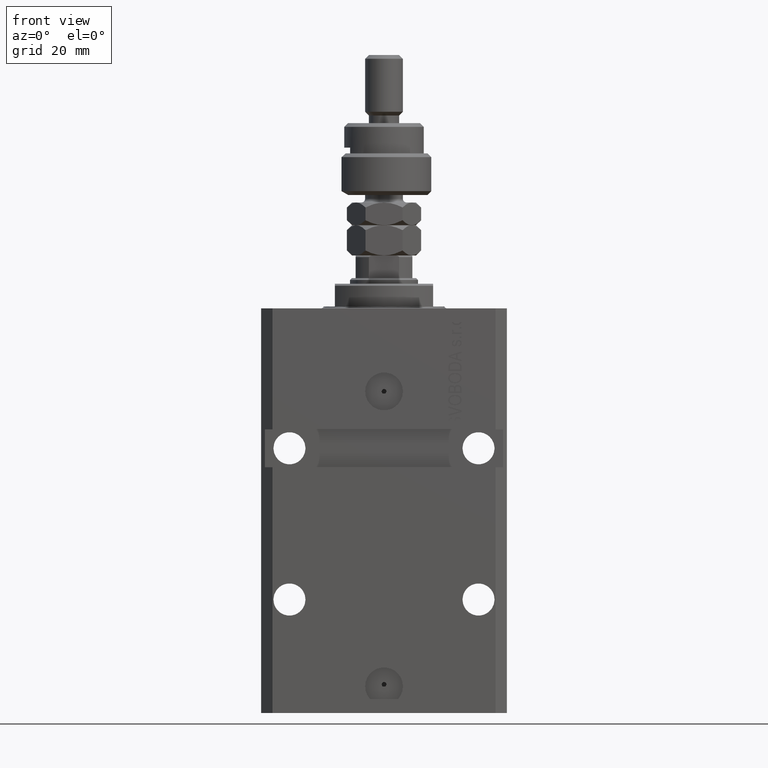
[diagram: clean part render]
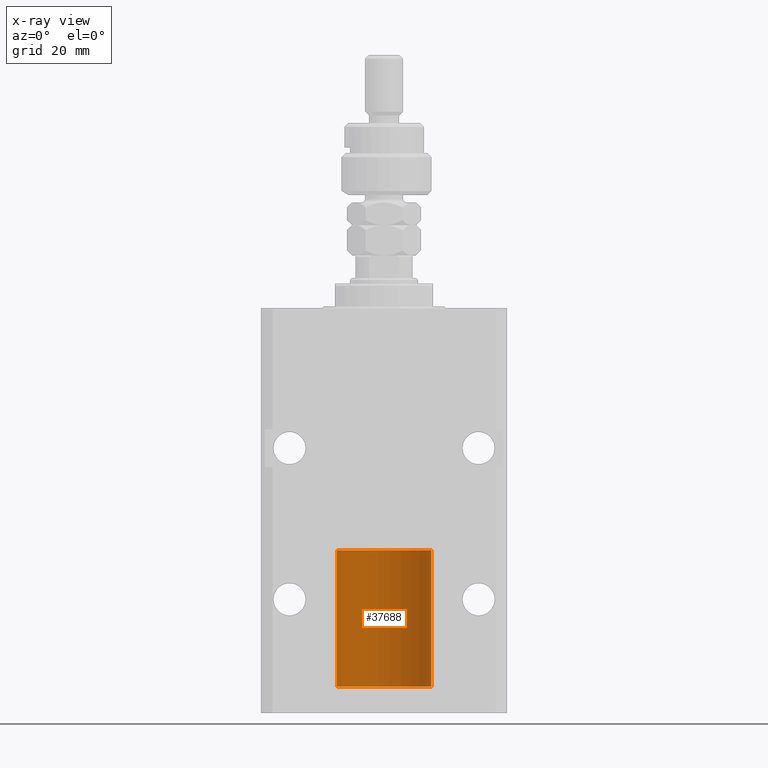
[diagram: x-ray — body ghosted, one internal face saturated and labeled with its STEP entity id]
A machine part, front view, then the same camera in x-ray: the body is ghosted and one INTERNAL B-rep face — a face not visible from any outside direction — is saturated and labeled: STEP entity #37688.
In plain terms, the highlighted cylindrical surface (partial cylindrical patch) has radius 12.5 mm, axis along (-0, -0, -1).
Its self-contained STEP definition (entity closure, byte-faithful):
#681 = EDGE_CURVE ( 'NONE', #46267, #39930, #21900, .T. ) ;
#4356 = CARTESIAN_POINT ( 'NONE',  ( 0.000000000000000000, 0.000000000000000000, 0.000000000000000000 ) ) ;
#6292 = EDGE_CURVE ( 'NONE', #46267, #42023, #17443, .T. ) ;
#6811 = ORIENTED_EDGE ( 'NONE', *, *, #8918, .T. ) ;
#8918 = EDGE_CURVE ( 'NONE', #42023, #48148, #13800, .T. ) ;
#11390 = DIRECTION ( 'NONE',  ( 0.000000000000000000, 0.000000000000000000, 1.000000000000000000 ) ) ;
#11607 = CARTESIAN_POINT ( 'NONE',  ( -12.50000000000000000, 0.000000000000000000, 0.000000000000000000 ) ) ;
#11964 = DIRECTION ( 'NONE',  ( -0.000000000000000000, -0.000000000000000000, -1.000000000000000000 ) ) ;
#13800 = CIRCLE ( 'NONE', #24525, 12.50000000000000000 ) ;
#16466 = DIRECTION ( 'NONE',  ( 0.000000000000000000, 0.000000000000000000, 1.000000000000000000 ) ) ;
#17443 = LINE ( 'NONE', #33188, #26069 ) ;
#20447 = CARTESIAN_POINT ( 'NONE',  ( -12.50000000000000000, 0.000000000000000000, 36.10000000000000142 ) ) ;
#21900 = CIRCLE ( 'NONE', #33431, 12.50000000000000000 ) ;
#21953 = DIRECTION ( 'NONE',  ( -0.000000000000000000, -0.000000000000000000, -1.000000000000000000 ) ) ;
#23516 = DIRECTION ( 'NONE',  ( 1.000000000000000000, 0.000000000000000000, 0.000000000000000000 ) ) ;
#24026 = CARTESIAN_POINT ( 'NONE',  ( 0.000000000000000000, 0.000000000000000000, 36.10000000000000142 ) ) ;
#24525 = AXIS2_PLACEMENT_3D ( 'NONE', #4356, #16466, #46689 ) ;
#24626 = ORIENTED_EDGE ( 'NONE', *, *, #6292, .T. ) ;
#25696 = ORIENTED_EDGE ( 'NONE', *, *, #681, .F. ) ;
#25817 = CARTESIAN_POINT ( 'NONE',  ( 0.000000000000000000, 0.000000000000000000, 36.10000000000000142 ) ) ;
#26069 = VECTOR ( 'NONE', #48947, 1000.000000000000000 ) ;
#26332 = FACE_OUTER_BOUND ( 'NONE', #42339, .T. ) ;
#26424 = AXIS2_PLACEMENT_3D ( 'NONE', #25817, #21953, #37679 ) ;
#28458 = LINE ( 'NONE', #20447, #43643 ) ;
#33188 = CARTESIAN_POINT ( 'NONE',  ( 12.50000000000000000, 1.530808498934191521E-15, 36.10000000000000142 ) ) ;
#33431 = AXIS2_PLACEMENT_3D ( 'NONE', #24026, #11390, #23516 ) ;
#36623 = EDGE_CURVE ( 'NONE', #39930, #48148, #28458, .T. ) ;
#37679 = DIRECTION ( 'NONE',  ( -1.000000000000000000, 0.000000000000000000, 0.000000000000000000 ) ) ;
#37688 = ADVANCED_FACE ( 'NONE', ( #26332 ), #49325, .T. ) ;
#38898 = ORIENTED_EDGE ( 'NONE', *, *, #36623, .F. ) ;
#39930 = VERTEX_POINT ( 'NONE', #45732 ) ;
#42023 = VERTEX_POINT ( 'NONE', #44490 ) ;
#42339 = EDGE_LOOP ( 'NONE', ( #25696, #24626, #6811, #38898 ) ) ;
#43643 = VECTOR ( 'NONE', #11964, 1000.000000000000000 ) ;
#44490 = CARTESIAN_POINT ( 'NONE',  ( 12.50000000000000000, 1.530808498934191521E-15, 0.000000000000000000 ) ) ;
#45732 = CARTESIAN_POINT ( 'NONE',  ( -12.50000000000000000, 0.000000000000000000, 36.10000000000000142 ) ) ;
#46267 = VERTEX_POINT ( 'NONE', #49291 ) ;
#46689 = DIRECTION ( 'NONE',  ( 1.000000000000000000, 0.000000000000000000, 0.000000000000000000 ) ) ;
#48148 = VERTEX_POINT ( 'NONE', #11607 ) ;
#48947 = DIRECTION ( 'NONE',  ( -0.000000000000000000, -0.000000000000000000, -1.000000000000000000 ) ) ;
#49291 = CARTESIAN_POINT ( 'NONE',  ( 12.50000000000000000, 1.530808498934191521E-15, 36.10000000000000142 ) ) ;
#49325 = CYLINDRICAL_SURFACE ( 'NONE', #26424, 12.50000000000000000 ) ;